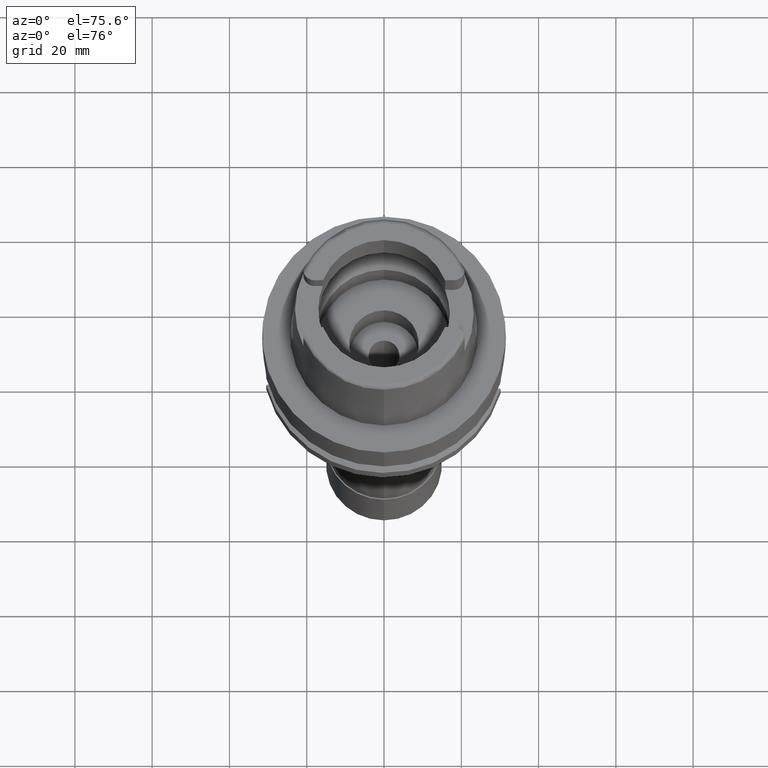
[diagram: clean part render]
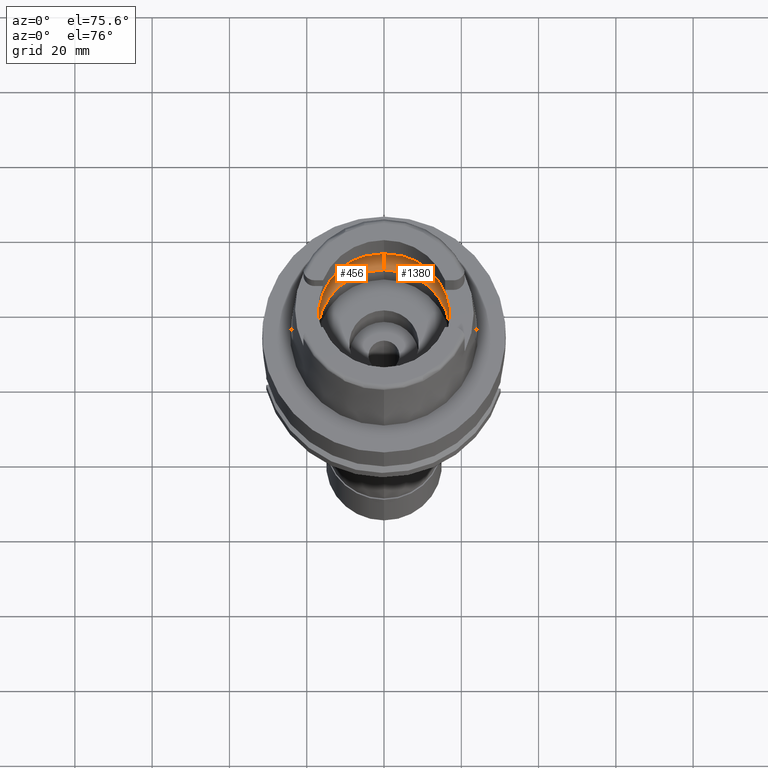
[diagram: same view with one multi-face feature highlighted, each face labeled with its STEP entity id]
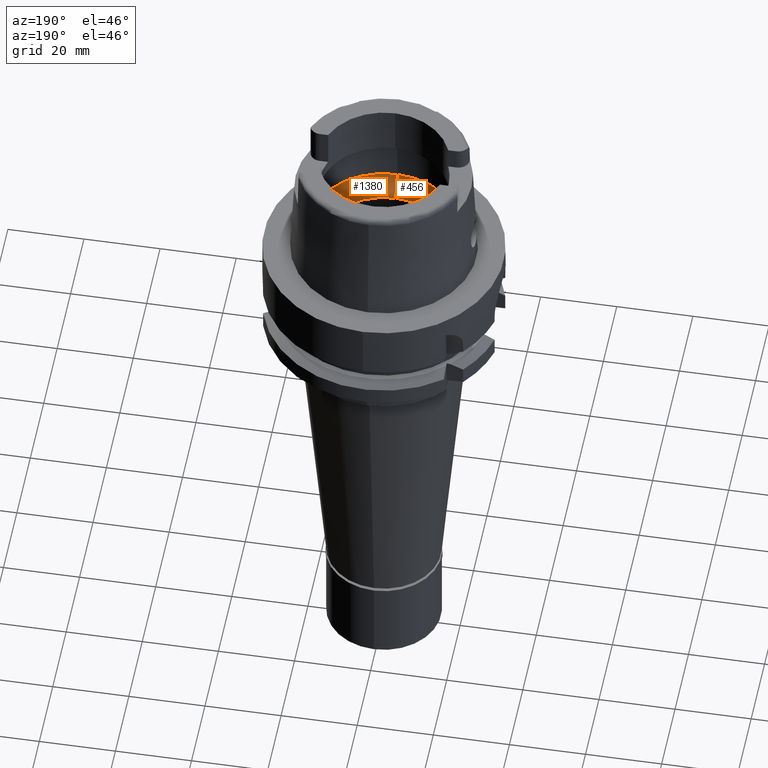
[diagram: same view with one multi-face feature highlighted, each face labeled with its STEP entity id]
A machine part, auxiliary view. The highlighted faces form ONE feature: a constant-radius fillet chain: 2 tangent blend faces with common blend radius 8 mm. The faces share edges in the B-rep.
A second angle (auxiliary view) of the same feature is appended — it is thin or edge-on in the first view.
Their STEP definitions:
[1] entity #456 (Torus):
#57 = DIRECTION ( 'NONE',  ( 0.0000000000000000000, 1.000000000000000000, 0.0000000000000000000 ) ) ;
#79 = VERTEX_POINT ( 'NONE', #483 ) ;
#110 = ORIENTED_EDGE ( 'NONE', *, *, #4457, .T. ) ;
#117 = CARTESIAN_POINT ( 'NONE',  ( -19.92705277426681576, 1.287130182688421165, 5.477772523843790431 ) ) ;
#126 = ORIENTED_EDGE ( 'NONE', *, *, #4828, .F. ) ;
#128 = CARTESIAN_POINT ( 'NONE',  ( -19.84575864665999845, -2.479085262491000030, 6.186348233825000875 ) ) ;
#132 = ORIENTED_EDGE ( 'NONE', *, *, #923, .F. ) ;
#220 = CARTESIAN_POINT ( 'NONE',  ( -19.84575864665999845, 2.479085262489999941, 6.186348233825000875 ) ) ;
#225 = CARTESIAN_POINT ( 'NONE',  ( 0.0000000000000000000, 0.0000000000000000000, 6.186348233825000875 ) ) ;
#278 = DIRECTION ( 'NONE',  ( 0.0000000000000000000, 0.0000000000000000000, 1.000000000000000000 ) ) ;
#386 = EDGE_CURVE ( 'NONE', #79, #2209, #1782, .T. ) ;
#416 = CARTESIAN_POINT ( 'NONE',  ( -19.94501428475999560, -0.4961209670605932209, 5.249999999999998224 ) ) ;
#446 = CARTESIAN_POINT ( 'NONE',  ( -19.92517003708521273, -1.343826440312797077, 5.499044281752649255 ) ) ;
#456 = ADVANCED_FACE ( 'NONE', ( #3647 ), #5028, .F. ) ;
#483 = CARTESIAN_POINT ( 'NONE',  ( -19.94501428475999916, 0.0000000000000000000, 5.250000000000000000 ) ) ;
#486 = CARTESIAN_POINT ( 'NONE',  ( -19.94501428475999916, 0.0000000000000000000, 5.250000000000000000 ) ) ;
#500 = CARTESIAN_POINT ( 'NONE',  ( -19.94501428475999916, 0.0000000000000000000, 5.250000000000000000 ) ) ;
#611 = CARTESIAN_POINT ( 'NONE',  ( 0.0000000000000000000, -17.25000000000000000, 0.1500000000000999700 ) ) ;
#794 = CARTESIAN_POINT ( 'NONE',  ( 0.0000000000000000000, 20.00000000000000000, 6.186348233825000875 ) ) ;
#867 = ORIENTED_EDGE ( 'NONE', *, *, #4424, .F. ) ;
#916 = CARTESIAN_POINT ( 'NONE',  ( -19.92466831866535770, -1.358331184285348270, 5.504646393194166265 ) ) ;
#923 = EDGE_CURVE ( 'NONE', #2209, #1523, #1974, .T. ) ;
#931 = CARTESIAN_POINT ( 'NONE',  ( -19.94340174866101734, 0.4850934535354030630, 5.274617952747172822 ) ) ;
#948 = CARTESIAN_POINT ( 'NONE',  ( 0.0000000000000000000, -12.00000000000000000, 6.186348233825000875 ) ) ;
#986 = CARTESIAN_POINT ( 'NONE',  ( -19.88331748051938064, 2.178416478297318104, 5.921431458854276464 ) ) ;
#1035 = CARTESIAN_POINT ( 'NONE',  ( 0.0000000000000000000, 0.0000000000000000000, 6.186348233825000875 ) ) ;
#1055 = DIRECTION ( 'NONE',  ( 1.000000000000000000, 0.0000000000000000000, 0.0000000000000000000 ) ) ;
#1324 = CARTESIAN_POINT ( 'NONE',  ( -19.92590934067762731, 1.321967662511047470, 5.490731940949380885 ) ) ;
#1523 = VERTEX_POINT ( 'NONE', #794 ) ;
#1782 = B_SPLINE_CURVE_WITH_KNOTS ( 'NONE', 3,
 ( #486, #2608, #931, #2685, #4370, #3493, #3815, #4728, #117, #5090, #3470, #1324, #1826, #986, #3100 ),
 .UNSPECIFIED., .F., .F.,
 ( 4, 2, 2, 1, 1, 1, 2, 2, 4 ),
 ( 0.0000000000000000000, 0.2500000000000037748, 0.3750000000000058287, 0.4375000000000067168, 0.4687500000000069944, 0.4843750000000072720, 0.4921875000000072720, 0.5000000000000072164, 1.000000000000000000 ),
 .UNSPECIFIED. ) ;
#1819 = DIRECTION ( 'NONE',  ( -1.000000000000000000, 0.0000000000000000000, 0.0000000000000000000 ) ) ;
#1826 = CARTESIAN_POINT ( 'NONE',  ( -19.90995254882344412, 1.795933974831515068, 5.670404978818013753 ) ) ;
#1923 = DIRECTION ( 'NONE',  ( 0.0000000000000000000, 0.6562500000000006661, -0.7545435292281016393 ) ) ;
#1974 = CIRCLE ( 'NONE', #4681, 20.00000000000001421 ) ;
#2155 = CARTESIAN_POINT ( 'NONE',  ( -19.92546218847456529, -1.335248582686434426, 5.495766530070138600 ) ) ;
#2204 = CARTESIAN_POINT ( 'NONE',  ( 0.0000000000000000000, 17.25000000000000000, 0.1500000000000999700 ) ) ;
#2209 = VERTEX_POINT ( 'NONE', #220 ) ;
#2297 = DIRECTION ( 'NONE',  ( 0.0000000000000000000, -1.000000000000000000, 0.0000000000000000000 ) ) ;
#2326 = DIRECTION ( 'NONE',  ( 0.0000000000000000000, 0.0000000000000000000, -1.000000000000000000 ) ) ;
#2515 = DIRECTION ( 'NONE',  ( 0.0000000000000000000, 0.0000000000000000000, 1.000000000000000000 ) ) ;
#2569 = CARTESIAN_POINT ( 'NONE',  ( -19.90653714044385936, -1.770134880955051226, 5.691950022312413537 ) ) ;
#2608 = CARTESIAN_POINT ( 'NONE',  ( -19.94501428476000271, 0.2480393703315448006, 5.249999999999999112 ) ) ;
#2670 = VERTEX_POINT ( 'NONE', #611 ) ;
#2685 = CARTESIAN_POINT ( 'NONE',  ( -19.93856414036406477, 0.8186926599981305674, 5.338707319452686839 ) ) ;
#2873 = B_SPLINE_CURVE_WITH_KNOTS ( 'NONE', 3,
 ( #3744, #2919, #4660, #3034, #2569, #4686, #4217, #2944, #4582, #916, #446, #2155, #4273, #416, #500 ),
 .UNSPECIFIED., .F., .F.,
 ( 4, 2, 2, 1, 1, 1, 2, 2, 4 ),
 ( 0.0000000000000000000, 0.2500000000000016653, 0.3750000000000023870, 0.4375000000000028866, 0.4687500000000030531, 0.4843750000000031641, 0.4921875000000032196, 0.5000000000000032196, 1.000000000000000000 ),
 .UNSPECIFIED. ) ;
#2919 = CARTESIAN_POINT ( 'NONE',  ( -19.86453683446996266, -2.328760709817148111, 6.053898515773700417 ) ) ;
#2944 = CARTESIAN_POINT ( 'NONE',  ( -19.92207706994746985, -1.430236285583133204, 5.533216425421237261 ) ) ;
#3034 = CARTESIAN_POINT ( 'NONE',  ( -19.90056096498078375, -1.871180422678105693, 5.748256676446665381 ) ) ;
#3100 = CARTESIAN_POINT ( 'NONE',  ( -19.84575864665999845, 2.479085262489999941, 6.186348233825000875 ) ) ;
#3122 = DIRECTION ( 'NONE',  ( 0.0000000000000000000, 0.0000000000000000000, -1.000000000000000000 ) ) ;
#3132 = VERTEX_POINT ( 'NONE', #128 ) ;
#3145 = CIRCLE ( 'NONE', #4619, 7.999999999999992895 ) ;
#3167 = CARTESIAN_POINT ( 'NONE',  ( 0.0000000000000000000, 12.00000000000000000, 6.186348233825000875 ) ) ;
#3455 = CARTESIAN_POINT ( 'NONE',  ( 0.0000000000000000000, 0.0000000000000000000, 0.1500000000000999700 ) ) ;
#3470 = CARTESIAN_POINT ( 'NONE',  ( -19.92606541085463689, 1.317269455711140846, 5.488968463726680014 ) ) ;
#3474 = EDGE_LOOP ( 'NONE', ( #126, #5124, #5423, #110, #132, #4361, #867 ) ) ;
#3481 = CIRCLE ( 'NONE', #4441, 20.00000000000000000 ) ;
#3493 = CARTESIAN_POINT ( 'NONE',  ( -19.93292026401761419, 1.081805289724191210, 5.409024550128566311 ) ) ;
#3647 = FACE_OUTER_BOUND ( 'NONE', #3474, .T. ) ;
#3744 = CARTESIAN_POINT ( 'NONE',  ( -19.84575864665999845, -2.479085262491000030, 6.186348233825000875 ) ) ;
#3815 = CARTESIAN_POINT ( 'NONE',  ( -19.93095498564698076, 1.158122524600810666, 5.432638017440244660 ) ) ;
#3969 = DIRECTION ( 'NONE',  ( -0.9922879323327794543, 0.1239542631244973381, 0.0000000000000000000 ) ) ;
#3975 = CARTESIAN_POINT ( 'NONE',  ( 0.0000000000000000000, 0.0000000000000000000, 6.186348233825000875 ) ) ;
#4114 = VERTEX_POINT ( 'NONE', #2204 ) ;
#4217 = CARTESIAN_POINT ( 'NONE',  ( -19.91819175305377243, -1.528964846757111973, 5.574905751837347267 ) ) ;
#4273 = CARTESIAN_POINT ( 'NONE',  ( -19.93856410866583317, -0.9461212226835923333, 5.348254255821970560 ) ) ;
#4360 = EDGE_CURVE ( 'NONE', #4114, #2670, #5148, .T. ) ;
#4361 = ORIENTED_EDGE ( 'NONE', *, *, #386, .F. ) ;
#4370 = CARTESIAN_POINT ( 'NONE',  ( -19.93654847024033927, 0.9262661514275534191, 5.364596242157149142 ) ) ;
#4424 = EDGE_CURVE ( 'NONE', #3132, #79, #2873, .T. ) ;
#4441 = AXIS2_PLACEMENT_3D ( 'NONE', #3975, #2326, #2297 ) ;
#4457 = EDGE_CURVE ( 'NONE', #4114, #1523, #3145, .T. ) ;
#4549 = VERTEX_POINT ( 'NONE', #4818 ) ;
#4582 = CARTESIAN_POINT ( 'NONE',  ( -19.92390774200794112, -1.380028552273980136, 5.513104237275524788 ) ) ;
#4590 = AXIS2_PLACEMENT_3D ( 'NONE', #225, #278, #5336 ) ;
#4619 = AXIS2_PLACEMENT_3D ( 'NONE', #3167, #1055, #1923 ) ;
#4660 = CARTESIAN_POINT ( 'NONE',  ( -19.88058468752640806, -2.158466029911068951, 5.925243478961304433 ) ) ;
#4681 = AXIS2_PLACEMENT_3D ( 'NONE', #1035, #3122, #3969 ) ;
#4686 = CARTESIAN_POINT ( 'NONE',  ( -19.91447752810589833, -1.610669004317299313, 5.613000827215236299 ) ) ;
#4728 = CARTESIAN_POINT ( 'NONE',  ( -19.92839760417749062, 1.244563448290384899, 5.462382440187010246 ) ) ;
#4818 = CARTESIAN_POINT ( 'NONE',  ( 0.0000000000000000000, -20.00000000000000000, 6.186348233825000875 ) ) ;
#4828 = EDGE_CURVE ( 'NONE', #4549, #3132, #3481, .T. ) ;
#4848 = DIRECTION ( 'NONE',  ( 0.0000000000000000000, -0.6562500000000006661, -0.7545435292281016393 ) ) ;
#4894 = CIRCLE ( 'NONE', #5251, 7.999999999999992895 ) ;
#4967 = AXIS2_PLACEMENT_3D ( 'NONE', #3455, #2515, #57 ) ;
#5028 = TOROIDAL_SURFACE ( 'NONE', #4590, 12.00000000000000000, 8.000000000000000000 ) ;
#5031 = EDGE_CURVE ( 'NONE', #2670, #4549, #4894, .T. ) ;
#5090 = CARTESIAN_POINT ( 'NONE',  ( -19.92646224591025472, 1.305232515153943673, 5.484475949585862153 ) ) ;
#5124 = ORIENTED_EDGE ( 'NONE', *, *, #5031, .F. ) ;
#5148 = CIRCLE ( 'NONE', #4967, 17.25000000000000000 ) ;
#5251 = AXIS2_PLACEMENT_3D ( 'NONE', #948, #1819, #4848 ) ;
#5336 = DIRECTION ( 'NONE',  ( 0.0000000000000000000, 1.000000000000000000, 0.0000000000000000000 ) ) ;
#5423 = ORIENTED_EDGE ( 'NONE', *, *, #4360, .F. ) ;
[2] entity #1380 (Torus):
#29 = CARTESIAN_POINT ( 'NONE',  ( 19.94501428475999560, -0.2480409225904866288, 5.249999999999998224 ) ) ;
#52 = EDGE_CURVE ( 'NONE', #2670, #4114, #3447, .T. ) ;
#104 = CARTESIAN_POINT ( 'NONE',  ( 19.84575864665999845, 2.479085262491000030, 6.186348233825000875 ) ) ;
#177 = EDGE_LOOP ( 'NONE', ( #1577, #2409, #3053, #5043, #804, #4691, #1045 ) ) ;
#351 = B_SPLINE_CURVE_WITH_KNOTS ( 'NONE', 3,
 ( #3002, #29, #3479, #2621, #2672, #3876, #3829, #1734, #5131, #888, #1364, #3085, #4739, #3059, #2153 ),
 .UNSPECIFIED., .F., .F.,
 ( 4, 2, 2, 1, 1, 1, 2, 2, 4 ),
 ( 0.0000000000000000000, 0.2499999999999987232, 0.3749999999999981126, 0.4374999999999977796, 0.4687499999999976130, 0.4843749999999973910, 0.4921874999999975020, 0.4999999999999975575, 1.000000000000000000 ),
 .UNSPECIFIED. ) ;
#429 = TOROIDAL_SURFACE ( 'NONE', #2567, 12.00000000000000000, 8.000000000000000000 ) ;
#458 = DIRECTION ( 'NONE',  ( 0.0000000000000000000, -1.000000000000000000, 0.0000000000000000000 ) ) ;
#579 = CARTESIAN_POINT ( 'NONE',  ( 19.92466859728581952, 1.358323626958147345, 5.504643456233413445 ) ) ;
#582 = CARTESIAN_POINT ( 'NONE',  ( 0.0000000000000000000, 0.0000000000000000000, 6.186348233825000875 ) ) ;
#611 = CARTESIAN_POINT ( 'NONE',  ( 0.0000000000000000000, -17.25000000000000000, 0.1500000000000999700 ) ) ;
#722 = CARTESIAN_POINT ( 'NONE',  ( 0.0000000000000000000, 0.0000000000000000000, 6.186348233825000875 ) ) ;
#794 = CARTESIAN_POINT ( 'NONE',  ( 0.0000000000000000000, 20.00000000000000000, 6.186348233825000875 ) ) ;
#804 = ORIENTED_EDGE ( 'NONE', *, *, #5031, .T. ) ;
#888 = CARTESIAN_POINT ( 'NONE',  ( 19.92646197918816497, -1.305240201015200885, 5.484478803106744849 ) ) ;
#948 = CARTESIAN_POINT ( 'NONE',  ( 0.0000000000000000000, -12.00000000000000000, 6.186348233825000875 ) ) ;
#1045 = ORIENTED_EDGE ( 'NONE', *, *, #4014, .F. ) ;
#1055 = DIRECTION ( 'NONE',  ( 1.000000000000000000, 0.0000000000000000000, 0.0000000000000000000 ) ) ;
#1083 = CARTESIAN_POINT ( 'NONE',  ( 19.92390802166061903, 1.380021155214873119, 5.513101308918829879 ) ) ;
#1346 = CIRCLE ( 'NONE', #5119, 20.00000000000001421 ) ;
#1364 = CARTESIAN_POINT ( 'NONE',  ( 19.92606513842726912, -1.317277204138124880, 5.488971370721959175 ) ) ;
#1380 = ADVANCED_FACE ( 'NONE', ( #4770 ), #429, .F. ) ;
#1421 = DIRECTION ( 'NONE',  ( 0.0000000000000000000, 0.0000000000000000000, -1.000000000000000000 ) ) ;
#1523 = VERTEX_POINT ( 'NONE', #794 ) ;
#1577 = ORIENTED_EDGE ( 'NONE', *, *, #2992, .F. ) ;
#1708 = CARTESIAN_POINT ( 'NONE',  ( 19.90653740763088919, 1.770130309642983013, 5.691947549107391424 ) ) ;
#1734 = CARTESIAN_POINT ( 'NONE',  ( 19.92839736527998795, -1.244570816102732236, 5.462385030248712248 ) ) ;
#1751 = VERTEX_POINT ( 'NONE', #2300 ) ;
#1819 = DIRECTION ( 'NONE',  ( -1.000000000000000000, 0.0000000000000000000, 0.0000000000000000000 ) ) ;
#1828 = B_SPLINE_CURVE_WITH_KNOTS ( 'NONE', 3,
 ( #104, #3373, #5157, #2255, #1708, #2971, #4460, #5184, #1083, #579, #2720, #2283, #1921, #5292, #2310 ),
 .UNSPECIFIED., .F., .F.,
 ( 4, 2, 2, 1, 1, 1, 2, 2, 4 ),
 ( 0.0000000000000000000, 0.2499999999999978906, 0.3749999999999969469, 0.4374999999999963363, 0.4687499999999959477, 0.4843749999999960587, 0.4921874999999960032, 0.4999999999999960032, 1.000000000000000000 ),
 .UNSPECIFIED. ) ;
#1921 = CARTESIAN_POINT ( 'NONE',  ( 19.93856420101220195, 0.9461154250117944642, 5.348253029309250728 ) ) ;
#1923 = DIRECTION ( 'NONE',  ( 0.0000000000000000000, 0.6562500000000006661, -0.7545435292281016393 ) ) ;
#2153 = CARTESIAN_POINT ( 'NONE',  ( 19.84575864665999845, -2.479085262491000030, 6.186348233825000875 ) ) ;
#2204 = CARTESIAN_POINT ( 'NONE',  ( 0.0000000000000000000, 17.25000000000000000, 0.1500000000000999700 ) ) ;
#2255 = CARTESIAN_POINT ( 'NONE',  ( 19.90056121658070509, 1.871176557661653028, 5.748254428408765548 ) ) ;
#2283 = CARTESIAN_POINT ( 'NONE',  ( 19.92546246839948410, 1.335240779489388130, 5.495763556830105756 ) ) ;
#2288 = DIRECTION ( 'NONE',  ( 0.0000000000000000000, 0.0000000000000000000, 1.000000000000000000 ) ) ;
#2300 = CARTESIAN_POINT ( 'NONE',  ( 19.94501428475999916, 0.0000000000000000000, 5.250000000000000000 ) ) ;
#2310 = CARTESIAN_POINT ( 'NONE',  ( 19.94501428475999916, 0.0000000000000000000, 5.250000000000000000 ) ) ;
#2407 = CIRCLE ( 'NONE', #4233, 20.00000000000000000 ) ;
#2409 = ORIENTED_EDGE ( 'NONE', *, *, #2862, .F. ) ;
#2426 = DIRECTION ( 'NONE',  ( 0.0000000000000000000, 0.0000000000000000000, -1.000000000000000000 ) ) ;
#2567 = AXIS2_PLACEMENT_3D ( 'NONE', #582, #2288, #3931 ) ;
#2621 = CARTESIAN_POINT ( 'NONE',  ( 19.93856404763053547, -0.8186976556962597407, 5.338708415004484564 ) ) ;
#2670 = VERTEX_POINT ( 'NONE', #611 ) ;
#2672 = CARTESIAN_POINT ( 'NONE',  ( 19.93654834852757674, -0.9262717684427986820, 5.364597653862788640 ) ) ;
#2720 = CARTESIAN_POINT ( 'NONE',  ( 19.92517031495895097, 1.343818775761117967, 5.499041339644736404 ) ) ;
#2802 = DIRECTION ( 'NONE',  ( 0.9922879323327794543, -0.1239542631244973381, 0.0000000000000000000 ) ) ;
#2830 = VERTEX_POINT ( 'NONE', #3277 ) ;
#2862 = EDGE_CURVE ( 'NONE', #1523, #3213, #2407, .T. ) ;
#2971 = CARTESIAN_POINT ( 'NONE',  ( 19.91447780742437246, 1.610663291711310841, 5.612998104004511823 ) ) ;
#2992 = EDGE_CURVE ( 'NONE', #3213, #1751, #1828, .T. ) ;
#3002 = CARTESIAN_POINT ( 'NONE',  ( 19.94501428475999916, 0.0000000000000000000, 5.250000000000000000 ) ) ;
#3009 = EDGE_CURVE ( 'NONE', #2830, #4549, #1346, .T. ) ;
#3053 = ORIENTED_EDGE ( 'NONE', *, *, #4457, .F. ) ;
#3059 = CARTESIAN_POINT ( 'NONE',  ( 19.88331726735226113, -2.178418184679663749, 5.921432962333624594 ) ) ;
#3085 = CARTESIAN_POINT ( 'NONE',  ( 19.92590906290987363, -1.321975527286320506, 5.490734903793806687 ) ) ;
#3145 = CIRCLE ( 'NONE', #4619, 7.999999999999992895 ) ;
#3167 = CARTESIAN_POINT ( 'NONE',  ( 0.0000000000000000000, 12.00000000000000000, 6.186348233825000875 ) ) ;
#3213 = VERTEX_POINT ( 'NONE', #4956 ) ;
#3277 = CARTESIAN_POINT ( 'NONE',  ( 19.84575864665999845, -2.479085262491000030, 6.186348233825000875 ) ) ;
#3373 = CARTESIAN_POINT ( 'NONE',  ( 19.86453694063900954, 2.328759859908619223, 6.053897766926341184 ) ) ;
#3440 = CARTESIAN_POINT ( 'NONE',  ( 0.0000000000000000000, 0.0000000000000000000, 0.1500000000000999700 ) ) ;
#3447 = CIRCLE ( 'NONE', #4840, 17.25000000000000000 ) ;
#3479 = CARTESIAN_POINT ( 'NONE',  ( 19.94340172547762435, -0.4850964740021785904, 5.274618261423839272 ) ) ;
#3606 = CARTESIAN_POINT ( 'NONE',  ( 0.0000000000000000000, 0.0000000000000000000, 6.186348233825000875 ) ) ;
#3829 = CARTESIAN_POINT ( 'NONE',  ( 19.93095478351687788, -1.158129430943444449, 5.432640251379964980 ) ) ;
#3876 = CARTESIAN_POINT ( 'NONE',  ( 19.93292009014225385, -1.081811776603662567, 5.409026499425241497 ) ) ;
#3931 = DIRECTION ( 'NONE',  ( 0.0000000000000000000, 1.000000000000000000, 0.0000000000000000000 ) ) ;
#4014 = EDGE_CURVE ( 'NONE', #1751, #2830, #351, .T. ) ;
#4071 = DIRECTION ( 'NONE',  ( 0.0000000000000000000, 1.000000000000000000, 0.0000000000000000000 ) ) ;
#4114 = VERTEX_POINT ( 'NONE', #2204 ) ;
#4233 = AXIS2_PLACEMENT_3D ( 'NONE', #722, #2426, #4071 ) ;
#4457 = EDGE_CURVE ( 'NONE', #4114, #1523, #3145, .T. ) ;
#4460 = CARTESIAN_POINT ( 'NONE',  ( 19.91819203562567253, 1.528958543118313473, 5.574902925593662850 ) ) ;
#4549 = VERTEX_POINT ( 'NONE', #4818 ) ;
#4619 = AXIS2_PLACEMENT_3D ( 'NONE', #3167, #1055, #1923 ) ;
#4691 = ORIENTED_EDGE ( 'NONE', *, *, #3009, .F. ) ;
#4739 = CARTESIAN_POINT ( 'NONE',  ( 19.90995224292280597, -1.795938310847502217, 5.670407811397693898 ) ) ;
#4770 = FACE_OUTER_BOUND ( 'NONE', #177, .T. ) ;
#4818 = CARTESIAN_POINT ( 'NONE',  ( 0.0000000000000000000, -20.00000000000000000, 6.186348233825000875 ) ) ;
#4840 = AXIS2_PLACEMENT_3D ( 'NONE', #3440, #5117, #458 ) ;
#4848 = DIRECTION ( 'NONE',  ( 0.0000000000000000000, -0.6562500000000006661, -0.7545435292281016393 ) ) ;
#4894 = CIRCLE ( 'NONE', #5251, 7.999999999999992895 ) ;
#4956 = CARTESIAN_POINT ( 'NONE',  ( 19.84575864665999845, 2.479085262491000030, 6.186348233825000875 ) ) ;
#5031 = EDGE_CURVE ( 'NONE', #2670, #4549, #4894, .T. ) ;
#5043 = ORIENTED_EDGE ( 'NONE', *, *, #52, .F. ) ;
#5117 = DIRECTION ( 'NONE',  ( 0.0000000000000000000, 0.0000000000000000000, 1.000000000000000000 ) ) ;
#5119 = AXIS2_PLACEMENT_3D ( 'NONE', #3606, #1421, #2802 ) ;
#5131 = CARTESIAN_POINT ( 'NONE',  ( 19.92705251603473471, -1.287137774195317608, 5.477775297526381593 ) ) ;
#5157 = CARTESIAN_POINT ( 'NONE',  ( 19.88058486986654572, 2.158464112384509193, 5.925242031513535679 ) ) ;
#5184 = CARTESIAN_POINT ( 'NONE',  ( 19.92207735139349367, 1.430229258461773956, 5.533213523230517517 ) ) ;
#5251 = AXIS2_PLACEMENT_3D ( 'NONE', #948, #1819, #4848 ) ;
#5292 = CARTESIAN_POINT ( 'NONE',  ( 19.94501428475999560, 0.4961178817713813860, 5.250000000000000888 ) ) ;